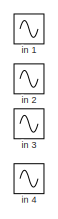
[diagram: root canvas - part 1/3, top center region]
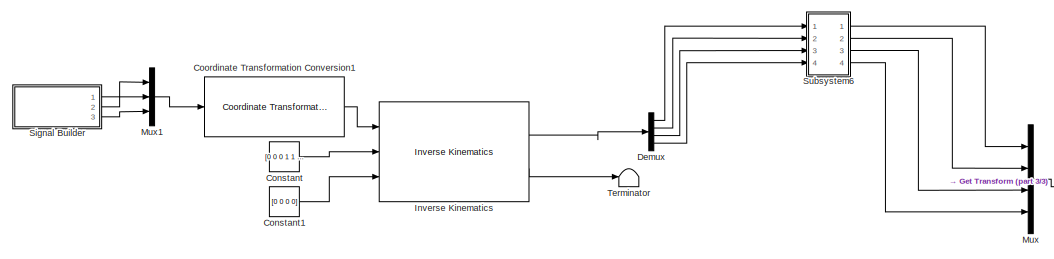
[diagram: root canvas - part 2/3, bottom left region]
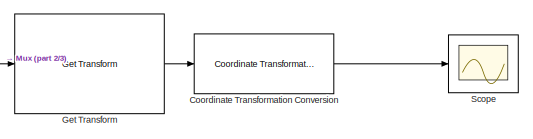
[diagram: root canvas - part 3/3, bottom right region]
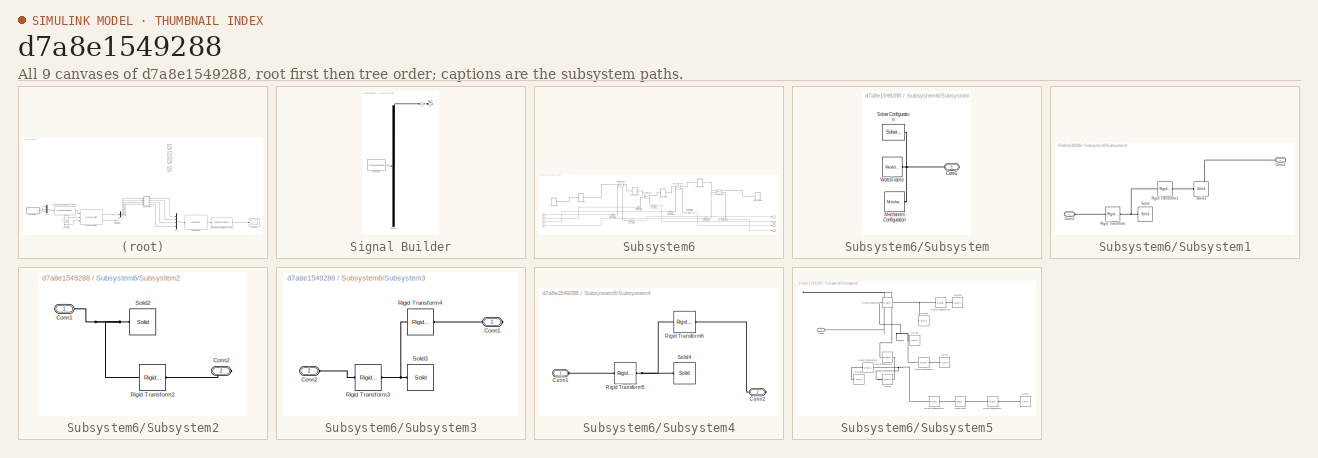
[diagram: thumbnail index - all 9 canvases of the model, root first then tree order]
MODEL slx_d7a8e1549288
KIND model
CONFIG AbsTol = auto
CONFIG EnableMultiTasking = off
CONFIG FixedStep = auto
CONFIG MaxStep = auto
CONFIG MinStep = auto
CONFIG RelTol = 1e-3
CONFIG SampleTimeConstraint = Unconstrained
CONFIG Solver = VariableStepAuto
CONFIG SolverName = VariableStepAuto
CONFIG StartTime = 0.0
CONFIG StopTime = 10.0
BLOCK [Constant] Constant
  Value = [0 0 0 1 1 1]
BLOCK [Constant] Constant1
  Value = [0 0 0 0]
BLOCK [Reference] Coordinate Transformation Conversion  REF=robotcorelib/Coordinate Transformation Conversion
  Ports = [1, 1]
  SourceBlock = robotcorelib/Coordinate Transformation Conversion
  SourceProductBaseCode = RO
  SourceProductName = Robotics System Toolbox
  SourceType = robotics.slcore.internal.block.CoordinateTransformationConversion
BLOCK [Reference] Coordinate Transformation Conversion1  REF=robotcorelib/Coordinate Transformation Conversion
  Ports = [1, 1]
  SourceBlock = robotcorelib/Coordinate Transformation Conversion
  SourceProductBaseCode = RO
  SourceProductName = Robotics System Toolbox
  SourceType = robotics.slcore.internal.block.CoordinateTransformationConversion
BLOCK [Demux] Demux
  DisplayOption = bar
  Ports = [1, 4]
BLOCK [Reference] Get Transform  REF=robotmaniplib/Get Transform
  Ports = [1, 1]
  SourceBlock = robotmaniplib/Get Transform
  SourceProductBaseCode = RO
  SourceProductName = Robotics System Toolbox
  SourceType = Get Transform
BLOCK [Reference] Inverse Kinematics  REF=robotmaniplib/Inverse Kinematics
  Ports = [3, 2]
  SourceBlock = robotmaniplib/Inverse Kinematics
  SourceProductBaseCode = RO
  SourceProductName = Robotics System Toolbox
  SourceType = Inverse Kinematics
BLOCK [Mux] Mux
  DisplayOption = bar
  Ports = [4, 1]
BLOCK [Mux] Mux1
  DisplayOption = bar
  Inputs = 3
  Ports = [3, 1]
BLOCK [Scope] Scope
  Floating = off
  NumInputPorts = 1
  Ports = [1]
  ScopeSpecificationString = Simulink.scopes.TimeScopeBlockCfg('CurrentConfiguration', extmgr.ConfigurationSet(extmgr.Configuration('Core','General UI',true),extmgr.Configuration('Core','Source UI',true),extmgr.Configuration('Sources','WiredSimulink',true),extmgr.Configuration('Visuals','Time Domain',true,'SerializedDisplays',{struct('MinYLimReal','-310.72597','MaxYLimReal','417.85844','YLabelReal','','MinYLimMag',' 0.00000',...<+1454ch>
BLOCK [SubSystem] Signal Builder
  ClipboardFcn = sigbuilder_block('clipboard');
  CloseFcn = sigbuilder_block('close');
  ContinueFcn = sigbuilder_block('continue');
  CopyFcn = sigbuilder_block('copy');
  DeleteFcn = sigbuilder_block('delete');
  LoadFcn = sigbuilder_block('load');
  MaskHideContents = on
  ModelCloseFcn = sigbuilder_block('modelClose');
  NameChangeFcn = sigbuilder_block('namechange');
  OpenFcn = sigbuilder_block('open',[437.6 153 550.4 359.25 ]);
  PauseFcn = sigbuilder_block('pause');
  Ports = [0, 3]
  PreSaveFcn = sigbuilder_block('preSave');
  RequestExecContextInheritance = off
  StartFcn = sigbuilder_block('start');
  StopFcn = sigbuilder_block('stop');
  Tag = STV Subsys
BLOCK [Demux] Signal Builder/Demux
  Outputs = 3
  Ports = [1, 3]
  Tag = STV Demux
BLOCK [FromWorkspace] Signal Builder/FromWs
  SampleTime = 0
  Tag = STV FromWs
  VariableName = tuvar
  ZeroCross = on
BLOCK [Outport] Signal Builder/Signal 1
  IconDisplay = Port number
  Port = 3
  Tag = STV Outport
BLOCK [Outport] Signal Builder/x
  IconDisplay = Port number
  Tag = STV Outport
BLOCK [Outport] Signal Builder/y
  IconDisplay = Port number
  Port = 2
  Tag = STV Outport
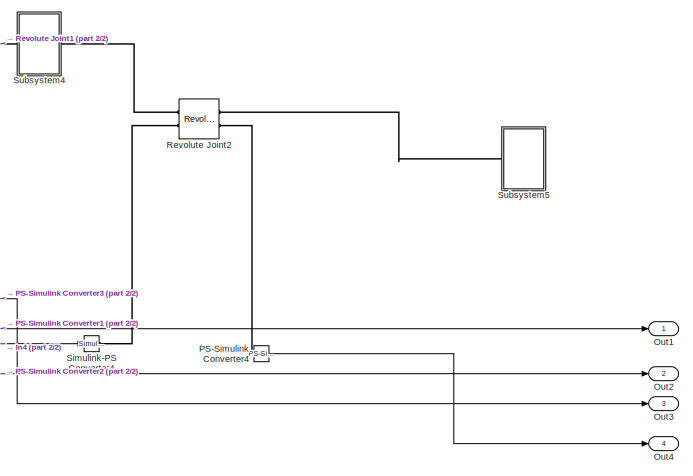
[diagram: Subsystem6 - part 1/2, right side, full height]
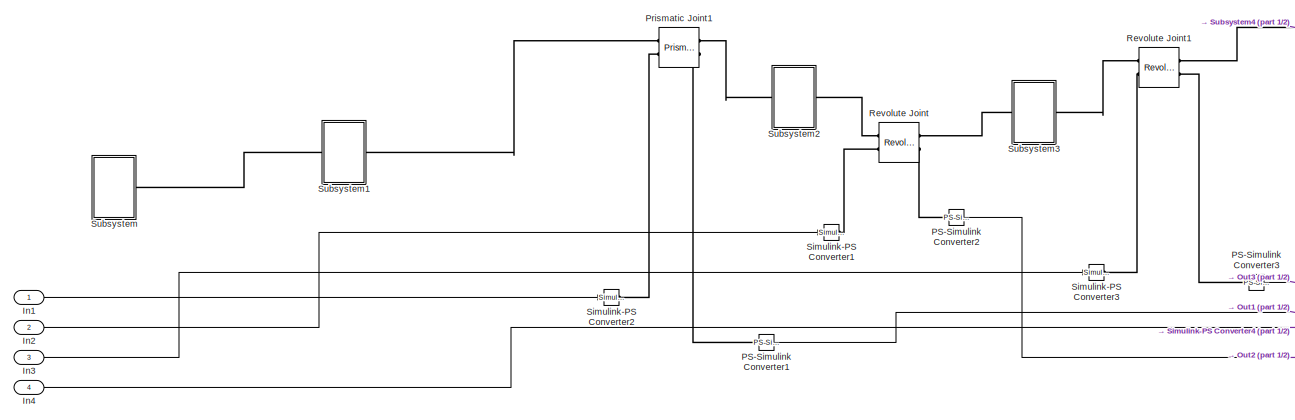
[diagram: Subsystem6 - part 2/2, left side, full height]
BLOCK [SubSystem] Subsystem6
  Ports = [4, 4]
  RequestExecContextInheritance = off
BLOCK [Inport] Subsystem6/In1
  IconDisplay = Port number
BLOCK [Inport] Subsystem6/In2
  IconDisplay = Port number
  Port = 2
BLOCK [Inport] Subsystem6/In3
  IconDisplay = Port number
  Port = 3
BLOCK [Inport] Subsystem6/In4
  IconDisplay = Port number
  Port = 4
BLOCK [Outport] Subsystem6/Out1
  IconDisplay = Port number
BLOCK [Outport] Subsystem6/Out2
  IconDisplay = Port number
  Port = 2
BLOCK [Outport] Subsystem6/Out3
  IconDisplay = Port number
  Port = 3
BLOCK [Outport] Subsystem6/Out4
  IconDisplay = Port number
  Port = 4
BLOCK [Reference] Subsystem6/PS-Simulink Converter1  REF=nesl_utility/PS-Simulink
Converter
  Ports = [0, 1, 0, 0, 0, 1]
  SourceBlock = nesl_utility/PS-Simulink\nConverter
  SourceProductBaseCode = SS
  SourceProductName = Simscape
  SourceType = PS-Simulink\nConverter
BLOCK [Reference] Subsystem6/PS-Simulink Converter2  REF=nesl_utility/PS-Simulink
Converter
  Ports = [0, 1, 0, 0, 0, 1]
  SourceBlock = nesl_utility/PS-Simulink\nConverter
  SourceProductBaseCode = SS
  SourceProductName = Simscape
  SourceType = PS-Simulink\nConverter
BLOCK [Reference] Subsystem6/PS-Simulink Converter3  REF=nesl_utility/PS-Simulink
Converter
  Ports = [0, 1, 0, 0, 0, 1]
  SourceBlock = nesl_utility/PS-Simulink\nConverter
  SourceProductBaseCode = SS
  SourceProductName = Simscape
  SourceType = PS-Simulink\nConverter
BLOCK [Reference] Subsystem6/PS-Simulink Converter4  REF=nesl_utility/PS-Simulink
Converter
  Ports = [0, 1, 0, 0, 0, 1]
  SourceBlock = nesl_utility/PS-Simulink\nConverter
  SourceProductBaseCode = SS
  SourceProductName = Simscape
  SourceType = PS-Simulink\nConverter
BLOCK [Reference] Subsystem6/Prismatic Joint1  REF=sm_lib/Joints/Prismatic
Joint
  Ports = [0, 0, 0, 0, 0, 2, 2]
  SourceBlock = sm_lib/Joints/Prismatic\nJoint
  SourceProductBaseCode = MS
  SourceType = Prismatic\nJoint
BLOCK [Reference] Subsystem6/Revolute Joint  REF=sm_lib/Joints/Revolute Joint
  Ports = [0, 0, 0, 0, 0, 2, 2]
  SourceBlock = sm_lib/Joints/Revolute Joint
  SourceProductBaseCode = MS
  SourceType = Revolute Joint
BLOCK [Reference] Subsystem6/Revolute Joint1  REF=sm_lib/Joints/Revolute Joint
  Ports = [0, 0, 0, 0, 0, 2, 2]
  SourceBlock = sm_lib/Joints/Revolute Joint
  SourceProductBaseCode = MS
  SourceType = Revolute Joint
BLOCK [Reference] Subsystem6/Revolute Joint2  REF=sm_lib/Joints/Revolute Joint
  Ports = [0, 0, 0, 0, 0, 2, 2]
  SourceBlock = sm_lib/Joints/Revolute Joint
  SourceProductBaseCode = MS
  SourceType = Revolute Joint
BLOCK [Reference] Subsystem6/Simulink-PS Converter1  REF=nesl_utility/Simulink-PS
Converter
  Ports = [1, 0, 0, 0, 0, 0, 1]
  SourceBlock = nesl_utility/Simulink-PS\nConverter
  SourceProductBaseCode = SS
  SourceType = Simulink-PS\nConverter
BLOCK [Reference] Subsystem6/Simulink-PS Converter2  REF=nesl_utility/Simulink-PS
Converter
  Ports = [1, 0, 0, 0, 0, 0, 1]
  SourceBlock = nesl_utility/Simulink-PS\nConverter
  SourceProductBaseCode = SS
  SourceType = Simulink-PS\nConverter
BLOCK [Reference] Subsystem6/Simulink-PS Converter3  REF=nesl_utility/Simulink-PS
Converter
  Ports = [1, 0, 0, 0, 0, 0, 1]
  SourceBlock = nesl_utility/Simulink-PS\nConverter
  SourceProductBaseCode = SS
  SourceType = Simulink-PS\nConverter
BLOCK [Reference] Subsystem6/Simulink-PS Converter4  REF=nesl_utility/Simulink-PS
Converter
  Ports = [1, 0, 0, 0, 0, 0, 1]
  SourceBlock = nesl_utility/Simulink-PS\nConverter
  SourceProductBaseCode = SS
  SourceType = Simulink-PS\nConverter
BLOCK [SubSystem] Subsystem6/Subsystem
  Ports = [0, 0, 0, 0, 0, 0, 1]
  RequestExecContextInheritance = off
BLOCK [PMIOPort] Subsystem6/Subsystem/Conn1
  Side = Right
BLOCK [Reference] Subsystem6/Subsystem/Mechanism Configuration  REF=sm_lib/Utilities/Mechanism
Configuration
  Ports = [0, 0, 0, 0, 0, 0, 1]
  SourceBlock = sm_lib/Utilities/Mechanism\nConfiguration
  SourceProductBaseCode = MS
  SourceType = Mechanism\nConfiguration
BLOCK [Reference] Subsystem6/Subsystem/Solver Configuration  REF=nesl_utility/Solver
Configuration
  Ports = [0, 0, 0, 0, 0, 0, 1]
  SourceBlock = nesl_utility/Solver\nConfiguration
  SourceProductBaseCode = SS
  SourceType = Solver\nConfiguration
BLOCK [Reference] Subsystem6/Subsystem/World Frame  REF=sm_lib/Frames and
Transforms/World Frame
  Ports = [0, 0, 0, 0, 0, 0, 1]
  SourceBlock = sm_lib/Frames and\nTransforms/World Frame
  SourceProductBaseCode = MS
  SourceType = World Frame
BLOCK [SubSystem] Subsystem6/Subsystem1
  Ports = [0, 0, 0, 0, 0, 1, 1]
  RequestExecContextInheritance = off
BLOCK [PMIOPort] Subsystem6/Subsystem1/Conn1
  Side = Right
BLOCK [PMIOPort] Subsystem6/Subsystem1/Conn2
  Port = 2
  Side = Left
BLOCK [Reference] Subsystem6/Subsystem1/Rigid Transform  REF=sm_lib/Frames and
Transforms/Rigid
Transform
  Ports = [0, 0, 0, 0, 0, 1, 1]
  SourceBlock = sm_lib/Frames and\nTransforms/Rigid\nTransform
  SourceProductBaseCode = MS
  SourceType = Rigid\nTransform
BLOCK [Reference] Subsystem6/Subsystem1/Rigid Transform1  REF=sm_lib/Frames and
Transforms/Rigid
Transform
  Ports = [0, 0, 0, 0, 0, 1, 1]
  SourceBlock = sm_lib/Frames and\nTransforms/Rigid\nTransform
  SourceProductBaseCode = MS
  SourceType = Rigid\nTransform
BLOCK [Reference] Subsystem6/Subsystem1/Solid  REF=sm_lib/Body Elements/Solid
  Ports = [0, 0, 0, 0, 0, 0, 1]
  SourceBlock = sm_lib/Body Elements/Solid
  SourceProductBaseCode = MS
  SourceType = Solid
BLOCK [Reference] Subsystem6/Subsystem1/Solid1  REF=sm_lib/Body Elements/Solid
  Ports = [0, 0, 0, 0, 0, 0, 1]
  SourceBlock = sm_lib/Body Elements/Solid
  SourceProductBaseCode = MS
  SourceType = Solid
BLOCK [SubSystem] Subsystem6/Subsystem2
  Ports = [0, 0, 0, 0, 0, 1, 1]
  RequestExecContextInheritance = off
BLOCK [PMIOPort] Subsystem6/Subsystem2/Conn1
  Side = Left
BLOCK [PMIOPort] Subsystem6/Subsystem2/Conn2
  Port = 2
  Side = Right
BLOCK [Reference] Subsystem6/Subsystem2/Rigid Transform2  REF=sm_lib/Frames and
Transforms/Rigid
Transform
  Ports = [0, 0, 0, 0, 0, 1, 1]
  SourceBlock = sm_lib/Frames and\nTransforms/Rigid\nTransform
  SourceProductBaseCode = MS
  SourceType = Rigid\nTransform
BLOCK [Reference] Subsystem6/Subsystem2/Solid2  REF=sm_lib/Body Elements/Solid
  Ports = [0, 0, 0, 0, 0, 0, 1]
  SourceBlock = sm_lib/Body Elements/Solid
  SourceProductBaseCode = MS
  SourceType = Solid
BLOCK [SubSystem] Subsystem6/Subsystem3
  Ports = [0, 0, 0, 0, 0, 1, 1]
  RequestExecContextInheritance = off
BLOCK [PMIOPort] Subsystem6/Subsystem3/Conn1
  Side = Right
BLOCK [PMIOPort] Subsystem6/Subsystem3/Conn2
  Port = 2
  Side = Left
BLOCK [Reference] Subsystem6/Subsystem3/Rigid Transform3  REF=sm_lib/Frames and
Transforms/Rigid
Transform
  Ports = [0, 0, 0, 0, 0, 1, 1]
  SourceBlock = sm_lib/Frames and\nTransforms/Rigid\nTransform
  SourceProductBaseCode = MS
  SourceType = Rigid\nTransform
BLOCK [Reference] Subsystem6/Subsystem3/Rigid Transform4  REF=sm_lib/Frames and
Transforms/Rigid
Transform
  Ports = [0, 0, 0, 0, 0, 1, 1]
  SourceBlock = sm_lib/Frames and\nTransforms/Rigid\nTransform
  SourceProductBaseCode = MS
  SourceType = Rigid\nTransform
BLOCK [Reference] Subsystem6/Subsystem3/Solid3  REF=sm_lib/Body Elements/Solid
  Ports = [0, 0, 0, 0, 0, 0, 1]
  SourceBlock = sm_lib/Body Elements/Solid
  SourceProductBaseCode = MS
  SourceType = Solid
BLOCK [SubSystem] Subsystem6/Subsystem4
  Ports = [0, 0, 0, 0, 0, 1, 1]
  RequestExecContextInheritance = off
BLOCK [PMIOPort] Subsystem6/Subsystem4/Conn1
  Side = Left
BLOCK [PMIOPort] Subsystem6/Subsystem4/Conn2
  Port = 2
  Side = Right
BLOCK [Reference] Subsystem6/Subsystem4/Rigid Transform5  REF=sm_lib/Frames and
Transforms/Rigid
Transform
  Ports = [0, 0, 0, 0, 0, 1, 1]
  SourceBlock = sm_lib/Frames and\nTransforms/Rigid\nTransform
  SourceProductBaseCode = MS
  SourceType = Rigid\nTransform
BLOCK [Reference] Subsystem6/Subsystem4/Rigid Transform6  REF=sm_lib/Frames and
Transforms/Rigid
Transform
  Ports = [0, 0, 0, 0, 0, 1, 1]
  SourceBlock = sm_lib/Frames and\nTransforms/Rigid\nTransform
  SourceProductBaseCode = MS
  SourceType = Rigid\nTransform
BLOCK [Reference] Subsystem6/Subsystem4/Solid4  REF=sm_lib/Body Elements/Solid
  Ports = [0, 0, 0, 0, 0, 0, 1]
  SourceBlock = sm_lib/Body Elements/Solid
  SourceProductBaseCode = MS
  SourceType = Solid
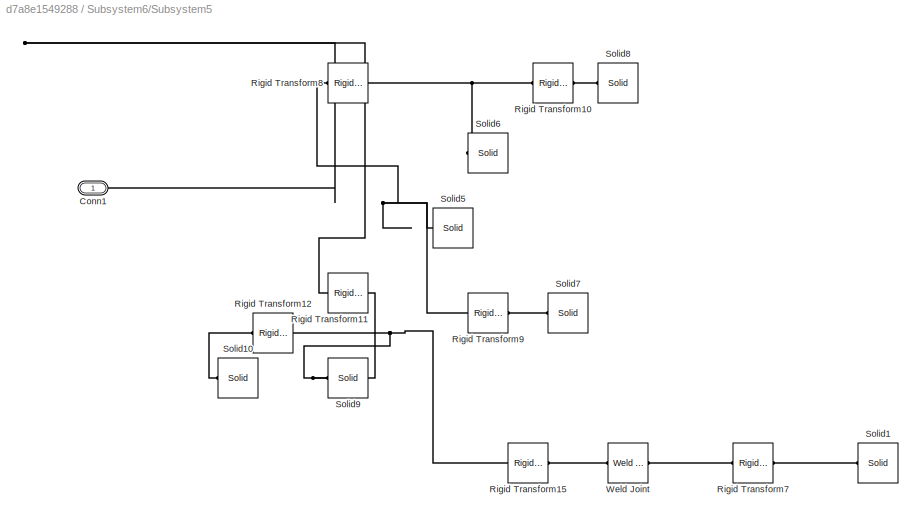
BLOCK [SubSystem] Subsystem6/Subsystem5
  Ports = [0, 0, 0, 0, 0, 1]
  RequestExecContextInheritance = off
BLOCK [PMIOPort] Subsystem6/Subsystem5/Conn1
  Side = Left
BLOCK [Reference] Subsystem6/Subsystem5/Rigid Transform10  REF=sm_lib/Frames and
Transforms/Rigid
Transform
  Ports = [0, 0, 0, 0, 0, 1, 1]
  SourceBlock = sm_lib/Frames and\nTransforms/Rigid\nTransform
  SourceProductBaseCode = MS
  SourceProductName = Simscape Multibody
  SourceType = Rigid\nTransform
BLOCK [Reference] Subsystem6/Subsystem5/Rigid Transform11  REF=sm_lib/Frames and
Transforms/Rigid
Transform
  Ports = [0, 0, 0, 0, 0, 1, 1]
  SourceBlock = sm_lib/Frames and\nTransforms/Rigid\nTransform
  SourceProductBaseCode = MS
  SourceProductName = Simscape Multibody
  SourceType = Rigid\nTransform
BLOCK [Reference] Subsystem6/Subsystem5/Rigid Transform12  REF=sm_lib/Frames and
Transforms/Rigid
Transform
  Ports = [0, 0, 0, 0, 0, 1, 1]
  SourceBlock = sm_lib/Frames and\nTransforms/Rigid\nTransform
  SourceProductBaseCode = MS
  SourceProductName = Simscape Multibody
  SourceType = Rigid\nTransform
BLOCK [Reference] Subsystem6/Subsystem5/Rigid Transform15   REF=sm_lib/Frames and
Transforms/Rigid
Transform
  Ports = [0, 0, 0, 0, 0, 1, 1]
  SourceBlock = sm_lib/Frames and\nTransforms/Rigid\nTransform
  SourceProductBaseCode = MS
  SourceType = Rigid\nTransform
BLOCK [Reference] Subsystem6/Subsystem5/Rigid Transform7  REF=sm_lib/Frames and
Transforms/Rigid
Transform
  Ports = [0, 0, 0, 0, 0, 1, 1]
  SourceBlock = sm_lib/Frames and\nTransforms/Rigid\nTransform
  SourceProductBaseCode = MS
  SourceType = Rigid\nTransform
BLOCK [Reference] Subsystem6/Subsystem5/Rigid Transform8  REF=sm_lib/Frames and
Transforms/Rigid
Transform
  Ports = [0, 0, 0, 0, 0, 1, 1]
  SourceBlock = sm_lib/Frames and\nTransforms/Rigid\nTransform
  SourceProductBaseCode = MS
  SourceProductName = Simscape Multibody
  SourceType = Rigid\nTransform
BLOCK [Reference] Subsystem6/Subsystem5/Rigid Transform9  REF=sm_lib/Frames and
Transforms/Rigid
Transform
  Ports = [0, 0, 0, 0, 0, 1, 1]
  SourceBlock = sm_lib/Frames and\nTransforms/Rigid\nTransform
  SourceProductBaseCode = MS
  SourceProductName = Simscape Multibody
  SourceType = Rigid\nTransform
BLOCK [Reference] Subsystem6/Subsystem5/Solid1  REF=sm_lib/Body Elements/Solid
  Ports = [0, 0, 0, 0, 0, 0, 1]
  SourceBlock = sm_lib/Body Elements/Solid
  SourceProductBaseCode = MS
  SourceType = Solid
BLOCK [Reference] Subsystem6/Subsystem5/Solid10  REF=sm_lib/Body Elements/Solid
  Ports = [0, 0, 0, 0, 0, 0, 1]
  SourceBlock = sm_lib/Body Elements/Solid
  SourceProductBaseCode = MS
  SourceProductName = Simscape Multibody
  SourceType = Solid
BLOCK [Reference] Subsystem6/Subsystem5/Solid5  REF=sm_lib/Body Elements/Solid
  Ports = [0, 0, 0, 0, 0, 0, 1]
  SourceBlock = sm_lib/Body Elements/Solid
  SourceProductBaseCode = MS
  SourceProductName = Simscape Multibody
  SourceType = Solid
BLOCK [Reference] Subsystem6/Subsystem5/Solid6  REF=sm_lib/Body Elements/Solid
  Ports = [0, 0, 0, 0, 0, 0, 1]
  SourceBlock = sm_lib/Body Elements/Solid
  SourceProductBaseCode = MS
  SourceProductName = Simscape Multibody
  SourceType = Solid
BLOCK [Reference] Subsystem6/Subsystem5/Solid7  REF=sm_lib/Body Elements/Solid
  Ports = [0, 0, 0, 0, 0, 0, 1]
  SourceBlock = sm_lib/Body Elements/Solid
  SourceProductBaseCode = MS
  SourceProductName = Simscape Multibody
  SourceType = Solid
BLOCK [Reference] Subsystem6/Subsystem5/Solid8  REF=sm_lib/Body Elements/Solid
  Ports = [0, 0, 0, 0, 0, 0, 1]
  SourceBlock = sm_lib/Body Elements/Solid
  SourceProductBaseCode = MS
  SourceProductName = Simscape Multibody
  SourceType = Solid
BLOCK [Reference] Subsystem6/Subsystem5/Solid9  REF=sm_lib/Body Elements/Solid
  Ports = [0, 0, 0, 0, 0, 0, 1]
  SourceBlock = sm_lib/Body Elements/Solid
  SourceProductBaseCode = MS
  SourceProductName = Simscape Multibody
  SourceType = Solid
BLOCK [Reference] Subsystem6/Subsystem5/Weld Joint  REF=sm_lib/Joints/Weld Joint
  Ports = [0, 0, 0, 0, 0, 1, 1]
  SourceBlock = sm_lib/Joints/Weld Joint
  SourceProductBaseCode = MS
  SourceType = Weld Joint
BLOCK [Terminator] Terminator
BLOCK [Sin] in 1
  Amplitude = 80
  Ports = [0, 1]
  SampleTime = 0
BLOCK [Sin] in 2
  Amplitude = 1.5
  Ports = [0, 1]
  SampleTime = 0
BLOCK [Sin] in 3
  Amplitude = 1.5
  Ports = [0, 1]
  SampleTime = 0
BLOCK [Sin] in 4
  Amplitude = 5
  Ports = [0, 1]
  SampleTime = 0
LINE Constant1:1 -> Inverse Kinematics:3
LINE Constant:1 -> Inverse Kinematics:2
LINE Coordinate Transformation Conversion1:1 -> Inverse Kinematics:1
LINE Coordinate Transformation Conversion:1 -> Scope:1
LINE Demux:1 -> Subsystem6:1
LINE Demux:2 -> Subsystem6:2
LINE Demux:3 -> Subsystem6:3
LINE Demux:4 -> Subsystem6:4
LINE Get Transform:1 -> Coordinate Transformation Conversion:1
LINE Inverse Kinematics:1 -> Demux:1
LINE Inverse Kinematics:2 -> Terminator:1
LINE Mux1:1 -> Coordinate Transformation Conversion1:1
LINE Mux:1 -> Get Transform:1
LINE Signal Builder:1 -> Mux1:1
LINE Signal Builder:2 -> Mux1:2
LINE Signal Builder:3 -> Mux1:3
LINE Subsystem6/In1:1 -> Subsystem6/Simulink-PS Converter2:1
LINE Subsystem6/In2:1 -> Subsystem6/Simulink-PS Converter1:1
LINE Subsystem6/In3:1 -> Subsystem6/Simulink-PS Converter3:1
LINE Subsystem6/In4:1 -> Subsystem6/Simulink-PS Converter4:1
LINE Subsystem6/PS-Simulink Converter1:1 -> Subsystem6/Out1:1
LINE Subsystem6/PS-Simulink Converter2:1 -> Subsystem6/Out2:1
LINE Subsystem6/PS-Simulink Converter3:1 -> Subsystem6/Out3:1
LINE Subsystem6/PS-Simulink Converter4:1 -> Subsystem6/Out4:1
LINE Subsystem6:1 -> Mux:1
LINE Subsystem6:2 -> Mux:2
LINE Subsystem6:3 -> Mux:3
LINE Subsystem6:4 -> Mux:4
PLINE Subsystem6/PS-Simulink Converter1:LConn1 -- Subsystem6/Prismatic Joint1:RConn2
PLINE Subsystem6/PS-Simulink Converter2:LConn1 -- Subsystem6/Revolute Joint:RConn2
PLINE Subsystem6/PS-Simulink Converter3:LConn1 -- Subsystem6/Revolute Joint1:RConn2
PLINE Subsystem6/PS-Simulink Converter4:LConn1 -- Subsystem6/Revolute Joint2:RConn2
PLINE Subsystem6/Prismatic Joint1:LConn1 -- Subsystem6/Subsystem1:RConn1
PLINE Subsystem6/Prismatic Joint1:LConn2 -- Subsystem6/Simulink-PS Converter2:RConn1
PLINE Subsystem6/Prismatic Joint1:RConn1 -- Subsystem6/Subsystem2:LConn1
PLINE Subsystem6/Revolute Joint1:LConn1 -- Subsystem6/Subsystem3:RConn1
PLINE Subsystem6/Revolute Joint1:LConn2 -- Subsystem6/Simulink-PS Converter3:RConn1
PLINE Subsystem6/Revolute Joint1:RConn1 -- Subsystem6/Subsystem4:LConn1
PLINE Subsystem6/Revolute Joint2:LConn1 -- Subsystem6/Subsystem4:RConn1
PLINE Subsystem6/Revolute Joint2:LConn2 -- Subsystem6/Simulink-PS Converter4:RConn1
PLINE Subsystem6/Revolute Joint2:RConn1 -- Subsystem6/Subsystem5:LConn1
PLINE Subsystem6/Revolute Joint:LConn1 -- Subsystem6/Subsystem2:RConn1
PLINE Subsystem6/Revolute Joint:LConn2 -- Subsystem6/Simulink-PS Converter1:RConn1
PLINE Subsystem6/Revolute Joint:RConn1 -- Subsystem6/Subsystem3:LConn1
PNET net1: Subsystem6/Subsystem/Conn1:RConn1 -- Subsystem6/Subsystem/Mechanism Configuration:RConn1 -- Subsystem6/Subsystem/Solver Configuration:RConn1 -- Subsystem6/Subsystem/World Frame:RConn1
PNET net2: Subsystem6/Subsystem1/Conn1:RConn1 -- Subsystem6/Subsystem1/Rigid Transform1:RConn1 -- Subsystem6/Subsystem1/Solid1:RConn1
PLINE Subsystem6/Subsystem1/Conn2:RConn1 -- Subsystem6/Subsystem1/Rigid Transform:LConn1
PNET net3: Subsystem6/Subsystem1/Rigid Transform1:LConn1 -- Subsystem6/Subsystem1/Rigid Transform:RConn1 -- Subsystem6/Subsystem1/Solid:RConn1
PLINE Subsystem6/Subsystem1:LConn1 -- Subsystem6/Subsystem:RConn1
PNET net4: Subsystem6/Subsystem2/Conn1:RConn1 -- Subsystem6/Subsystem2/Rigid Transform2:LConn1 -- Subsystem6/Subsystem2/Solid2:RConn1
PLINE Subsystem6/Subsystem2/Conn2:RConn1 -- Subsystem6/Subsystem2/Rigid Transform2:RConn1
PLINE Subsystem6/Subsystem3/Conn1:RConn1 -- Subsystem6/Subsystem3/Rigid Transform4:RConn1
PLINE Subsystem6/Subsystem3/Conn2:RConn1 -- Subsystem6/Subsystem3/Rigid Transform3:LConn1
PNET net5: Subsystem6/Subsystem3/Rigid Transform3:RConn1 -- Subsystem6/Subsystem3/Rigid Transform4:LConn1 -- Subsystem6/Subsystem3/Solid3:RConn1
PLINE Subsystem6/Subsystem4/Conn1:RConn1 -- Subsystem6/Subsystem4/Rigid Transform5:LConn1
PLINE Subsystem6/Subsystem4/Conn2:RConn1 -- Subsystem6/Subsystem4/Rigid Transform6:RConn1
PNET net6: Subsystem6/Subsystem4/Rigid Transform5:RConn1 -- Subsystem6/Subsystem4/Rigid Transform6:LConn1 -- Subsystem6/Subsystem4/Solid4:RConn1
PNET net7: Subsystem6/Subsystem5/Conn1:RConn1 -- Subsystem6/Subsystem5/Rigid Transform11:LConn1 -- Subsystem6/Subsystem5/Rigid Transform8:LConn1 -- Subsystem6/Subsystem5/Rigid Transform9:LConn1 -- Subsystem6/Subsystem5/Solid5:RConn1
PNET net8: Subsystem6/Subsystem5/Rigid Transform10:LConn1 -- Subsystem6/Subsystem5/Rigid Transform8:RConn1 -- Subsystem6/Subsystem5/Solid6:RConn1
PLINE Subsystem6/Subsystem5/Rigid Transform10:RConn1 -- Subsystem6/Subsystem5/Solid8:RConn1
PNET net9: Subsystem6/Subsystem5/Rigid Transform11:RConn1 -- Subsystem6/Subsystem5/Rigid Transform12:RConn1 -- Subsystem6/Subsystem5/Rigid Transform15 :LConn1 -- Subsystem6/Subsystem5/Solid9:RConn1
PLINE Subsystem6/Subsystem5/Rigid Transform12:LConn1 -- Subsystem6/Subsystem5/Solid10:RConn1
PLINE Subsystem6/Subsystem5/Rigid Transform15 :RConn1 -- Subsystem6/Subsystem5/Weld Joint:LConn1
PLINE Subsystem6/Subsystem5/Rigid Transform7:LConn1 -- Subsystem6/Subsystem5/Weld Joint:RConn1
PLINE Subsystem6/Subsystem5/Rigid Transform7:RConn1 -- Subsystem6/Subsystem5/Solid1:RConn1
PLINE Subsystem6/Subsystem5/Rigid Transform9:RConn1 -- Subsystem6/Subsystem5/Solid7:RConn1
note: PNET lines group multi-terminal physical nets as a canonical sorted terminal list (undirected conserving connections); 2-terminal nets keep the pairwise PLINE form
